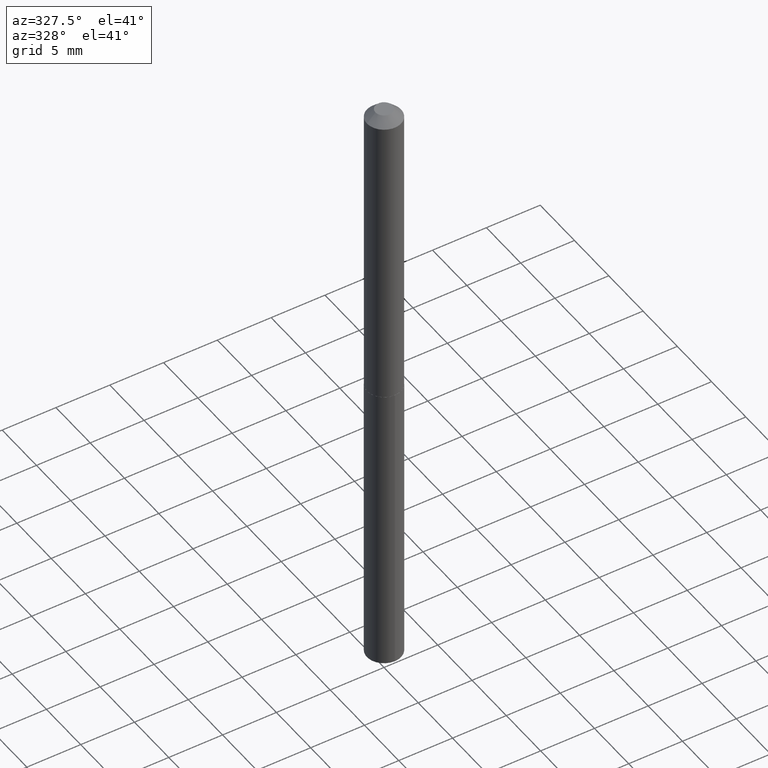
[diagram: clean part render]
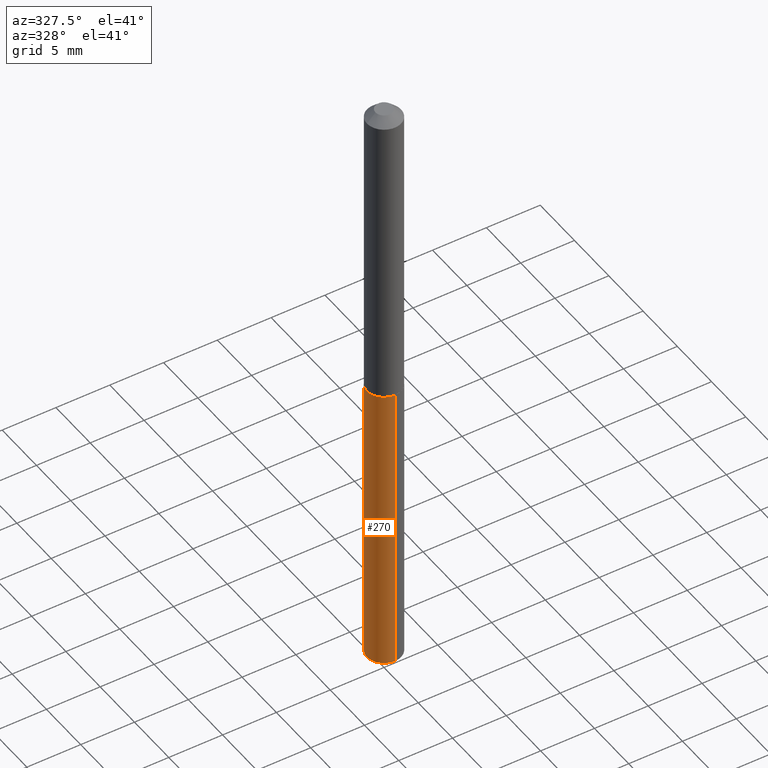
[diagram: same view with one face highlighted and labeled with its STEP entity id]
A machine part, auxiliary view. The second image highlights one B-rep face of the part: STEP entity #270.
In plain terms, the highlighted cylindrical surface (edge-blend (fillet) strip) has radius 1.5875 mm, axis along (-0, 0, 1).
Its self-contained STEP definition (entity closure, byte-faithful):
#4 = LINE ( 'NONE', #240, #120 ) ;
#13 = LINE ( 'NONE', #248, #225 ) ;
#18 = CYLINDRICAL_SURFACE ( 'NONE', #307, 0.06250000000000000000 ) ;
#39 = DIRECTION ( 'NONE',  ( -6.982962677686265922E-15, -1.000000000000000000, 4.370956789862821150E-15 ) ) ;
#54 = CARTESIAN_POINT ( 'NONE',  ( 4.440892098501165545E-16, 0.06249999999999227007, -2.212446211310777677 ) ) ;
#94 = CARTESIAN_POINT ( 'NONE',  ( -4.364351673553640593E-16, -0.06250000000000392741, -1.124999999999999778 ) ) ;
#109 = ORIENTED_EDGE ( 'NONE', *, *, #156, .F. ) ;
#114 = AXIS2_PLACEMENT_3D ( 'NONE', #322, #238, #213 ) ;
#120 = VECTOR ( 'NONE', #266, 39.37007874015748143 ) ;
#133 = DIRECTION ( 'NONE',  ( -2.445496520942649923E-29, 3.491441649732960219E-15, 1.000000000000000000 ) ) ;
#136 = CIRCLE ( 'NONE', #233, 0.06250000000000000000 ) ;
#156 = EDGE_CURVE ( 'NONE', #290, #199, #378, .T. ) ;
#159 = VERTEX_POINT ( 'NONE', #320 ) ;
#199 = VERTEX_POINT ( 'NONE', #94 ) ;
#213 = DIRECTION ( 'NONE',  ( -6.982962677686265922E-15, -1.000000000000000000, 4.370956789862821150E-15 ) ) ;
#221 = CARTESIAN_POINT ( 'NONE',  ( 2.751152406958278671E-29, -3.927916506198539224E-15, -1.125000000000000000 ) ) ;
#225 = VECTOR ( 'NONE', #253, 39.37007874015748143 ) ;
#229 = EDGE_CURVE ( 'NONE', #335, #290, #4, .T. ) ;
#233 = AXIS2_PLACEMENT_3D ( 'NONE', #312, #254, #39 ) ;
#238 = DIRECTION ( 'NONE',  ( -2.445496520942649923E-29, 3.491441649732960219E-15, 1.000000000000000000 ) ) ;
#240 = CARTESIAN_POINT ( 'NONE',  ( 4.440892098500901277E-16, 0.06249999999999607259, -1.125000000000000222 ) ) ;
#248 = CARTESIAN_POINT ( 'NONE',  ( -4.364351673553640593E-16, -0.06250000000000392741, -1.124999999999999778 ) ) ;
#253 = DIRECTION ( 'NONE',  ( -2.445496520942649923E-29, 3.491441649732960219E-15, 1.000000000000000000 ) ) ;
#254 = DIRECTION ( 'NONE',  ( -2.445496520942649923E-29, 3.491441649732960219E-15, 1.000000000000000000 ) ) ;
#255 = EDGE_CURVE ( 'NONE', #159, #199, #13, .T. ) ;
#266 = DIRECTION ( 'NONE',  ( -2.445496520942649923E-29, 3.491441649732960219E-15, 1.000000000000000000 ) ) ;
#270 = ADVANCED_FACE ( 'NONE', ( #286 ), #18, .T. ) ;
#283 = ORIENTED_EDGE ( 'NONE', *, *, #229, .F. ) ;
#286 = FACE_OUTER_BOUND ( 'NONE', #287, .T. ) ;
#287 = EDGE_LOOP ( 'NONE', ( #283, #309, #374, #109 ) ) ;
#290 = VERTEX_POINT ( 'NONE', #340 ) ;
#296 = EDGE_CURVE ( 'NONE', #335, #159, #136, .T. ) ;
#307 = AXIS2_PLACEMENT_3D ( 'NONE', #221, #133, #371 ) ;
#309 = ORIENTED_EDGE ( 'NONE', *, *, #296, .T. ) ;
#312 = CARTESIAN_POINT ( 'NONE',  ( 5.410498333431049920E-29, -7.724671500213297613E-15, -2.212446211310777233 ) ) ;
#320 = CARTESIAN_POINT ( 'NONE',  ( -4.364351673553374845E-16, -0.06250000000000771605, -2.212446211310777233 ) ) ;
#322 = CARTESIAN_POINT ( 'NONE',  ( 2.751152406958278671E-29, -3.927916506198539224E-15, -1.125000000000000000 ) ) ;
#335 = VERTEX_POINT ( 'NONE', #54 ) ;
#340 = CARTESIAN_POINT ( 'NONE',  ( 4.440892098501169490E-16, 0.06249999999999607952, -1.125000000000000222 ) ) ;
#371 = DIRECTION ( 'NONE',  ( -6.982962677686265922E-15, -1.000000000000000000, 4.370956789862821150E-15 ) ) ;
#374 = ORIENTED_EDGE ( 'NONE', *, *, #255, .T. ) ;
#378 = CIRCLE ( 'NONE', #114, 0.06250000000000000000 ) ;